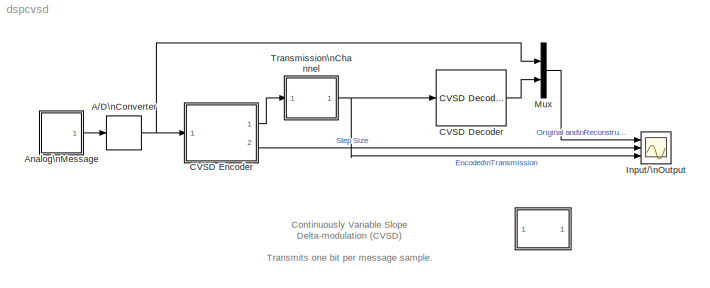
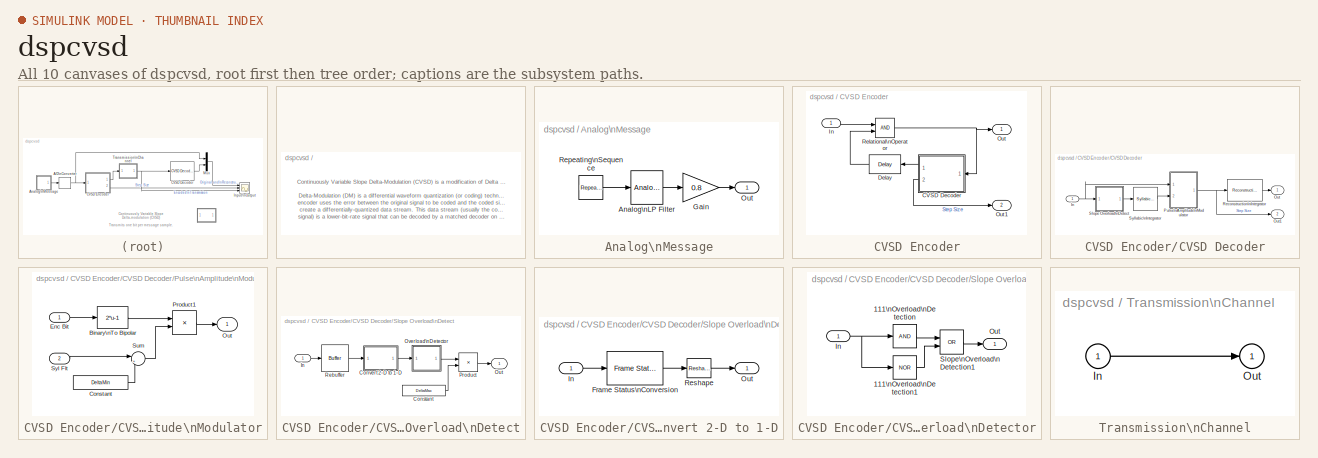
[diagram: thumbnail index - all 10 canvases of the model, root first then tree order]
MODEL dspcvsd
KIND model
CONFIG AbsTol = 1e-6
CONFIG FixedStep = 1/64000
CONFIG MaxStep = 1/64000
CONFIG MinStep = auto
CONFIG RelTol = 1e-3
CONFIG Solver = ode5
CONFIG SolverMode = SingleTasking
CONFIG StartTime = 0.0
CONFIG StopTime = 99999
BLOCK [SubSystem]  
  MaskDisplay = disp('Info')
  MaskIconFrame = on
  MaskIconOpaque = on
  MaskIconRotate = none
  MaskIconUnits = autoscale
  MaskType = CVSD Demo Info
  Ports = []
  TreatAsAtomicUnit = off
BLOCK [ZeroOrderHold] A//D\nConverter
  SampleTime = 1/8000
BLOCK [SubSystem] Analog\nMessage
  Ports = [0, 1]
  TreatAsAtomicUnit = off
BLOCK [Reference] Analog\nMessage/Analog\nLP Filter  REF=dsparch3/Analog\nFilter Design
  N = 5
  Ports = [1, 1]
  Rp = 3
  Rs = 40
  SourceBlock = dsparch3/Analog\nFilter Design
  SourceType = Analog Filter Design
  Whi = 80
  Wlo = 2*pi*400
  filttype = Lowpass
  method = Butterworth
BLOCK [Gain] Analog\nMessage/Gain
  Gain = 0.8
BLOCK [Outport] Analog\nMessage/Out
  InitialOutput = 0
BLOCK [Reference] Analog\nMessage/Repeating\nSequence  REF=simulink3/Sources/Repeating\nSequence
  Ports = [0, 1]
  SourceBlock = simulink3/Sources/Repeating\nSequence
  SourceType = Repeating table
  rep_seq_t = [0 .005 .005 .015 .015 .02]
  rep_seq_y = [1 1 -1 -1 1 1]
BLOCK [Reference] CVSD Decoder  REF=dspwvfmcdlib/CVSD Decoder
  DeltaMax = 20
  DeltaMin = 0.01
  Ports = [1, 1]
  RecIntTau = 0.96
  SourceBlock = dspwvfmcdlib/CVSD Decoder
  SourceType = CVSD Decoder
  SylIntTau = 0.99
BLOCK [SubSystem] CVSD Encoder
  AncestorBlock = dspwvfmcdlib/CVSD Encoder
  MaskCallbackString = |||
  MaskDisplay = disp('CVSD\\nEncoder')
  MaskEnableString = on,on,on,on
  MaskIconFrame = on
  MaskIconOpaque = on
  MaskIconRotate = none
  MaskIconUnits = autoscale
  MaskPromptString = Maximum step size|Syllabic integrator time constant|Minimum step size|Reconstruction integrator time constant
  MaskStyleString = edit,edit,edit,edit
  MaskToolTipString = on,on,on,on
  MaskTunableValueString = on,on,on,on
  MaskType = CVSD Encoder
  MaskValueString = 20|0.99|0.01|0.96
  MaskVarAliasString = ,,,
  MaskVariables = EncDeltaMax=@1;EncSylIntTau=@2;EncDeltaMin=@3;EncRecIntTau=@4;
  MaskVisibilityString = on,on,on,on
  Ports = [1, 2]
  TreatAsAtomicUnit = off
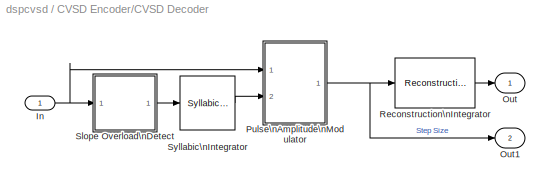
BLOCK [SubSystem] CVSD Encoder/CVSD Decoder
  AncestorBlock = dspwvfmcdlib/CVSD Decoder
  MaskCallbackString = |||
  MaskDisplay = disp('CVSD\\nDecoder')
  MaskEnableString = on,on,on,on
  MaskIconFrame = on
  MaskIconOpaque = on
  MaskIconRotate = none
  MaskIconUnits = autoscale
  MaskPromptString = Maximum step size|Syllabic integrator time constant|Minimum step size|Reconstruction integrator time constant
  MaskStyleString = edit,edit,edit,edit
  MaskToolTipString = on,on,on,on
  MaskTunableValueString = on,on,on,on
  MaskType = CVSD Decoder
  MaskValueString = EncDeltaMax|EncSylIntTau|EncDeltaMin|EncRecIntTau
  MaskVarAliasString = ,,,
  MaskVariables = DeltaMax=@1;SylIntTau=@2;DeltaMin=@3;RecIntTau=@4;
  MaskVisibilityString = on,on,on,on
  Ports = [1, 2]
  TreatAsAtomicUnit = off
BLOCK [Inport] CVSD Encoder/CVSD Decoder/In
BLOCK [Outport] CVSD Encoder/CVSD Decoder/Out
BLOCK [Outport] CVSD Encoder/CVSD Decoder/Out1
  Port = 2
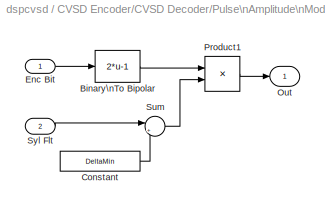
BLOCK [SubSystem] CVSD Encoder/CVSD Decoder/Pulse\nAmplitude\nModulator
  Ports = [2, 1]
  TreatAsAtomicUnit = off
BLOCK [Fcn] CVSD Encoder/CVSD Decoder/Pulse\nAmplitude\nModulator/Binary\nTo Bipolar
  Expr = 2*u-1
BLOCK [Constant] CVSD Encoder/CVSD Decoder/Pulse\nAmplitude\nModulator/Constant
  Value = DeltaMin
BLOCK [Inport] CVSD Encoder/CVSD Decoder/Pulse\nAmplitude\nModulator/Enc Bit
BLOCK [Outport] CVSD Encoder/CVSD Decoder/Pulse\nAmplitude\nModulator/Out
BLOCK [Product] CVSD Encoder/CVSD Decoder/Pulse\nAmplitude\nModulator/Product1
  Ports = [2, 1]
BLOCK [Sum] CVSD Encoder/CVSD Decoder/Pulse\nAmplitude\nModulator/Sum
  IconShape = round
  Inputs = |++
  Ports = [2, 1]
BLOCK [Inport] CVSD Encoder/CVSD Decoder/Pulse\nAmplitude\nModulator/Syl Flt
  Port = 2
BLOCK [Reference] CVSD Encoder/CVSD Decoder/Reconstruction\nIntegrator  REF=dspwvfmcdlib/CVSD Decoder/Reconstruction\nIntegrator
  Ports = [1, 1]
  SourceBlock = dspwvfmcdlib/CVSD Decoder/Reconstruction\nIntegrator
BLOCK [SubSystem] CVSD Encoder/CVSD Decoder/Slope Overload\nDetect
  MaskDisplay = disp('Slope\\nOverload\\nDetect')
  MaskIconFrame = on
  MaskIconOpaque = on
  MaskIconRotate = none
  MaskIconUnits = autoscale
  Ports = [1, 1]
  TreatAsAtomicUnit = off
BLOCK [Constant] CVSD Encoder/CVSD Decoder/Slope Overload\nDetect/Constant
  Value = DeltaMax
BLOCK [SubSystem] CVSD Encoder/CVSD Decoder/Slope Overload\nDetect/Convert 2-D to 1-D
  AncestorBlock = dspelem3/Convert 2-D to 1-D
  MaskDescription = Output a (1-D) vector signal.
  MaskDisplay = disp('U( : )')
  MaskIconFrame = on
  MaskIconOpaque = on
  MaskIconRotate = none
  MaskIconUnits = autoscale
  MaskType = Convert 2-D to 1-D
  Ports = [1, 1]
  ShowPortLabels = off
  TreatAsAtomicUnit = off
BLOCK [Reference] CVSD Encoder/CVSD Decoder/Slope Overload\nDetect/Convert 2-D to 1-D/Frame Status\nConversion  REF=dspsigattribs/Frame Status\nConversion
  Ports = [1, 1]
  SourceBlock = dspsigattribs/Frame Status\nConversion
  SourceType = Frame Status Conversion
  growRefPort = off
  outframe = Sample-based
BLOCK [Inport] CVSD Encoder/CVSD Decoder/Slope Overload\nDetect/Convert 2-D to 1-D/In
BLOCK [Outport] CVSD Encoder/CVSD Decoder/Slope Overload\nDetect/Convert 2-D to 1-D/Out
BLOCK [Reference] CVSD Encoder/CVSD Decoder/Slope Overload\nDetect/Convert 2-D to 1-D/Reshape  REF=simulink3/Signals\n& Systems/Reshape
  OutputDimensionality = 1-D array
  OutputDimensions = [1,1]
  Ports = [1, 1]
  SourceBlock = simulink3/Signals\n& Systems/Reshape
  SourceType = Reshape
BLOCK [Inport] CVSD Encoder/CVSD Decoder/Slope Overload\nDetect/In
BLOCK [Outport] CVSD Encoder/CVSD Decoder/Slope Overload\nDetect/Out
BLOCK [SubSystem] CVSD Encoder/CVSD Decoder/Slope Overload\nDetect/Overload\nDetector
  MaskDisplay = disp('Overload\\nDetector')
  MaskIconFrame = on
  MaskIconOpaque = on
  MaskIconRotate = none
  MaskIconUnits = autoscale
  Ports = [1, 1]
  TreatAsAtomicUnit = off
BLOCK [Logic] CVSD Encoder/CVSD Decoder/Slope Overload\nDetect/Overload\nDetector/111\nOverload\nDetection
  Inputs = 1
  Ports = [1, 1]
BLOCK [Logic] CVSD Encoder/CVSD Decoder/Slope Overload\nDetect/Overload\nDetector/111\nOverload\nDetection1
  Inputs = 1
  Operator = NOR
  Ports = [1, 1]
BLOCK [Inport] CVSD Encoder/CVSD Decoder/Slope Overload\nDetect/Overload\nDetector/In
BLOCK [Outport] CVSD Encoder/CVSD Decoder/Slope Overload\nDetect/Overload\nDetector/Out
BLOCK [Logic] CVSD Encoder/CVSD Decoder/Slope Overload\nDetect/Overload\nDetector/Slope\nOverload\nDetection1
  Operator = OR
  Ports = [2, 1]
BLOCK [Product] CVSD Encoder/CVSD Decoder/Slope Overload\nDetect/Product
  Ports = [2, 1]
BLOCK [Reference] CVSD Encoder/CVSD Decoder/Slope Overload\nDetect/Rebuffer  REF=dspbuff3/Buffer
  N = 3
  Ports = [1, 1]
  SourceBlock = dspbuff3/Buffer
  SourceType = Buffer
  V = 2
  ic = 0
BLOCK [Reference] CVSD Encoder/CVSD Decoder/Syllabic\nIntegrator  REF=dspwvfmcdlib/CVSD Decoder/Syllabic\nIntegrator
  Ports = [1, 1]
  SourceBlock = dspwvfmcdlib/CVSD Decoder/Syllabic\nIntegrator
BLOCK [Reference] CVSD Encoder/Delay  REF=dspsigops/Delay
  Ports = [1, 1]
  SourceBlock = dspsigops/Delay
  SourceType = Delay
  delay = 1
  dif_ic_for_ch = off
  dif_ic_for_dly = off
  dly_unit = Samples
  ic = 0
  ic_detail = on
  reset_popup = None
BLOCK [Inport] CVSD Encoder/In
BLOCK [Outport] CVSD Encoder/Out
BLOCK [Outport] CVSD Encoder/Out1
  Port = 2
BLOCK [RelationalOperator] CVSD Encoder/Relational\nOperator
BLOCK [Scope] Input//\nOutput
  DataFormat = Array
  NumInputPorts = 3
  Ports = [3]
  TimeRange = 0.02
  YMax = 2~5~1.1
  YMin = -2~-5~-0.1
BLOCK [Mux] Mux
  DisplayOption = bar
  Inputs = 2
  Ports = [2, 1]
BLOCK [SubSystem] Transmission\nChannel
  Ports = [1, 1]
  TreatAsAtomicUnit = off
BLOCK [Inport] Transmission\nChannel/In
BLOCK [Outport] Transmission\nChannel/Out
  InitialOutput = 0
ANNOTATION (root): Continuously Variable Slope\nDelta-modulation (CVSD)\n\nTransmits one bit per message sample.
ANNOTATION  : Continuously Variable Slope Delta-Modulation (CVSD) is a modification of Delta Modulation.\n\nDelta-Modulation (DM) is a differential waveform quantization (or coding) technique. A DM \nencoder uses the error between the original signal to be coded and the coded signal itself to \ncreate a differentially-quantized data stream. This data stream (usually the computer error \nsignal) is a lower-bit-r...<+1067ch>
NET A//D\nConverter:1 -> CVSD Encoder:1, Mux:1
LINE Analog\nMessage/Analog\nLP Filter:1 -> Analog\nMessage/Gain:1
LINE Analog\nMessage/Gain:1 -> Analog\nMessage/Out:1
LINE Analog\nMessage/Repeating\nSequence:1 -> Analog\nMessage/Analog\nLP Filter:1
LINE Analog\nMessage:1 -> A//D\nConverter:1
LINE CVSD Decoder:1 -> Mux:2
NET CVSD Encoder/CVSD Decoder/In:1 -> CVSD Encoder/CVSD Decoder/Pulse\nAmplitude\nModulator:1, CVSD Encoder/CVSD Decoder/Slope Overload\nDetect:1
LINE CVSD Encoder/CVSD Decoder/Pulse\nAmplitude\nModulator/Binary\nTo Bipolar:1 -> CVSD Encoder/CVSD Decoder/Pulse\nAmplitude\nModulator/Product1:1
LINE CVSD Encoder/CVSD Decoder/Pulse\nAmplitude\nModulator/Constant:1 -> CVSD Encoder/CVSD Decoder/Pulse\nAmplitude\nModulator/Sum:2
LINE CVSD Encoder/CVSD Decoder/Pulse\nAmplitude\nModulator/Enc Bit:1 -> CVSD Encoder/CVSD Decoder/Pulse\nAmplitude\nModulator/Binary\nTo Bipolar:1
LINE CVSD Encoder/CVSD Decoder/Pulse\nAmplitude\nModulator/Product1:1 -> CVSD Encoder/CVSD Decoder/Pulse\nAmplitude\nModulator/Out:1
LINE CVSD Encoder/CVSD Decoder/Pulse\nAmplitude\nModulator/Sum:1 -> CVSD Encoder/CVSD Decoder/Pulse\nAmplitude\nModulator/Product1:2
LINE CVSD Encoder/CVSD Decoder/Pulse\nAmplitude\nModulator/Syl Flt:1 -> CVSD Encoder/CVSD Decoder/Pulse\nAmplitude\nModulator/Sum:1
NET CVSD Encoder/CVSD Decoder/Pulse\nAmplitude\nModulator:1 -> CVSD Encoder/CVSD Decoder/Out1:1, CVSD Encoder/CVSD Decoder/Reconstruction\nIntegrator:1
LINE CVSD Encoder/CVSD Decoder/Reconstruction\nIntegrator:1 -> CVSD Encoder/CVSD Decoder/Out:1
LINE CVSD Encoder/CVSD Decoder/Slope Overload\nDetect/Constant:1 -> CVSD Encoder/CVSD Decoder/Slope Overload\nDetect/Product:2
LINE CVSD Encoder/CVSD Decoder/Slope Overload\nDetect/Convert 2-D to 1-D/Frame Status\nConversion:1 -> CVSD Encoder/CVSD Decoder/Slope Overload\nDetect/Convert 2-D to 1-D/Reshape:1
LINE CVSD Encoder/CVSD Decoder/Slope Overload\nDetect/Convert 2-D to 1-D/In:1 -> CVSD Encoder/CVSD Decoder/Slope Overload\nDetect/Convert 2-D to 1-D/Frame Status\nConversion:1
LINE CVSD Encoder/CVSD Decoder/Slope Overload\nDetect/Convert 2-D to 1-D/Reshape:1 -> CVSD Encoder/CVSD Decoder/Slope Overload\nDetect/Convert 2-D to 1-D/Out:1
LINE CVSD Encoder/CVSD Decoder/Slope Overload\nDetect/Convert 2-D to 1-D:1 -> CVSD Encoder/CVSD Decoder/Slope Overload\nDetect/Overload\nDetector:1
LINE CVSD Encoder/CVSD Decoder/Slope Overload\nDetect/In:1 -> CVSD Encoder/CVSD Decoder/Slope Overload\nDetect/Rebuffer:1
LINE CVSD Encoder/CVSD Decoder/Slope Overload\nDetect/Overload\nDetector/111\nOverload\nDetection1:1 -> CVSD Encoder/CVSD Decoder/Slope Overload\nDetect/Overload\nDetector/Slope\nOverload\nDetection1:2
LINE CVSD Encoder/CVSD Decoder/Slope Overload\nDetect/Overload\nDetector/111\nOverload\nDetection:1 -> CVSD Encoder/CVSD Decoder/Slope Overload\nDetect/Overload\nDetector/Slope\nOverload\nDetection1:1
NET CVSD Encoder/CVSD Decoder/Slope Overload\nDetect/Overload\nDetector/In:1 -> CVSD Encoder/CVSD Decoder/Slope Overload\nDetect/Overload\nDetector/111\nOverload\nDetection1:1, CVSD Encoder/CVSD Decoder/Slope Overload\nDetect/Overload\nDetector/111\nOverload\nDetection:1
LINE CVSD Encoder/CVSD Decoder/Slope Overload\nDetect/Overload\nDetector/Slope\nOverload\nDetection1:1 -> CVSD Encoder/CVSD Decoder/Slope Overload\nDetect/Overload\nDetector/Out:1
LINE CVSD Encoder/CVSD Decoder/Slope Overload\nDetect/Overload\nDetector:1 -> CVSD Encoder/CVSD Decoder/Slope Overload\nDetect/Product:1
LINE CVSD Encoder/CVSD Decoder/Slope Overload\nDetect/Product:1 -> CVSD Encoder/CVSD Decoder/Slope Overload\nDetect/Out:1
LINE CVSD Encoder/CVSD Decoder/Slope Overload\nDetect/Rebuffer:1 -> CVSD Encoder/CVSD Decoder/Slope Overload\nDetect/Convert 2-D to 1-D:1
LINE CVSD Encoder/CVSD Decoder/Slope Overload\nDetect:1 -> CVSD Encoder/CVSD Decoder/Syllabic\nIntegrator:1
LINE CVSD Encoder/CVSD Decoder/Syllabic\nIntegrator:1 -> CVSD Encoder/CVSD Decoder/Pulse\nAmplitude\nModulator:2
LINE CVSD Encoder/CVSD Decoder:1 -> CVSD Encoder/Delay:1
LINE CVSD Encoder/CVSD Decoder:2 -> CVSD Encoder/Out1:1
LINE CVSD Encoder/Delay:1 -> CVSD Encoder/Relational\nOperator:2
LINE CVSD Encoder/In:1 -> CVSD Encoder/Relational\nOperator:1
NET CVSD Encoder/Relational\nOperator:1 -> CVSD Encoder/CVSD Decoder:1, CVSD Encoder/Out:1
LINE CVSD Encoder:1 -> Transmission\nChannel:1
LINE CVSD Encoder:2 -> Input//\nOutput:2
LINE Mux:1 -> Input//\nOutput:1
LINE Transmission\nChannel/In:1 -> Transmission\nChannel/Out:1
NET Transmission\nChannel:1 -> CVSD Decoder:1, Input//\nOutput:3
note: NET lines group one-source signal fan-out (src -> all destinations, sorted); 1:1 wires keep LINE
